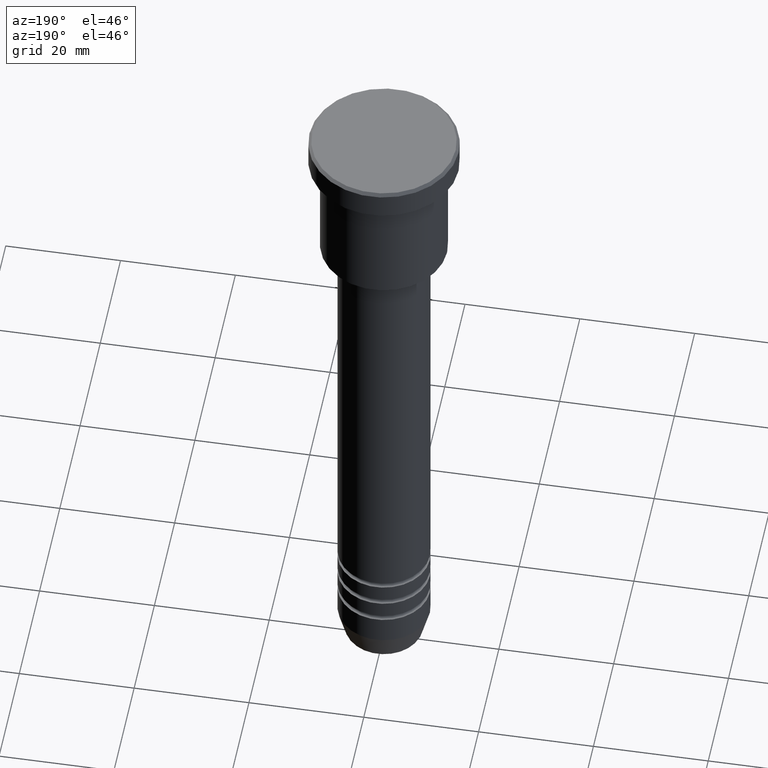
[diagram: clean part render]
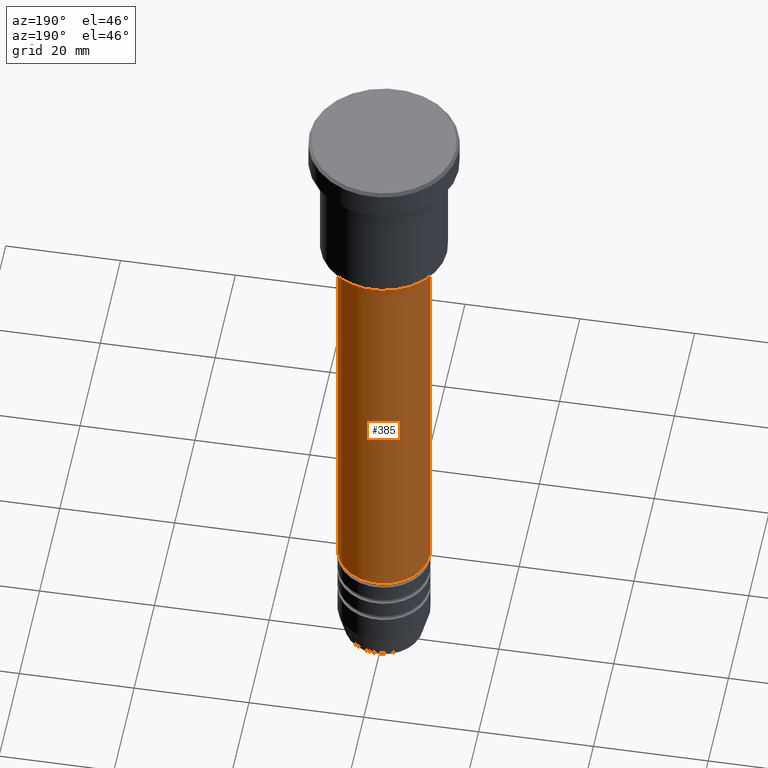
[diagram: same view with one face highlighted and labeled with its STEP entity id]
A machine part, auxiliary view. The second image highlights one B-rep face of the part: STEP entity #385.
In plain terms, the highlighted cylindrical surface (partial cylindrical patch) has radius 8 mm, axis along (-0, -0, 1).
Its self-contained STEP definition (entity closure, byte-faithful):
#17 = FACE_OUTER_BOUND ( 'NONE', #227, .T. ) ;
#37 = EDGE_CURVE ( 'NONE', #417, #650, #1076, .T. ) ;
#38 = DIRECTION ( 'NONE',  ( -0.000000000000000000, -0.000000000000000000, 1.000000000000000000 ) ) ;
#72 = DIRECTION ( 'NONE',  ( -0.000000000000000000, -0.000000000000000000, 1.000000000000000000 ) ) ;
#97 = CARTESIAN_POINT ( 'NONE',  ( -8.000000000000000000, 9.797174393178825657E-16, -27.00000000000001776 ) ) ;
#123 = EDGE_CURVE ( 'NONE', #650, #1023, #735, .T. ) ;
#205 = CYLINDRICAL_SURFACE ( 'NONE', #637, 8.000000000000000000 ) ;
#219 = CARTESIAN_POINT ( 'NONE',  ( -8.000000000000000000, 9.797174393178825657E-16, -100.9999999999999716 ) ) ;
#223 = ORIENTED_EDGE ( 'NONE', *, *, #37, .F. ) ;
#227 = EDGE_LOOP ( 'NONE', ( #577, #242, #254, #223 ) ) ;
#229 = EDGE_CURVE ( 'NONE', #1066, #1023, #1082, .T. ) ;
#236 = CIRCLE ( 'NONE', #732, 8.000000000000000000 ) ;
#242 = ORIENTED_EDGE ( 'NONE', *, *, #229, .T. ) ;
#254 = ORIENTED_EDGE ( 'NONE', *, *, #123, .F. ) ;
#269 = CARTESIAN_POINT ( 'NONE',  ( 0.000000000000000000, 0.000000000000000000, -100.9999999999999716 ) ) ;
#319 = CARTESIAN_POINT ( 'NONE',  ( 0.000000000000000000, 0.000000000000000000, -27.00000000000001776 ) ) ;
#385 = ADVANCED_FACE ( 'NONE', ( #17 ), #205, .T. ) ;
#417 = VERTEX_POINT ( 'NONE', #745 ) ;
#451 = DIRECTION ( 'NONE',  ( -0.000000000000000000, -0.000000000000000000, 1.000000000000000000 ) ) ;
#549 = CARTESIAN_POINT ( 'NONE',  ( 8.000000000000000000, 0.000000000000000000, -27.00000000000001776 ) ) ;
#551 = CARTESIAN_POINT ( 'NONE',  ( -8.000000000000000000, 9.797174393178825657E-16, 0.000000000000000000 ) ) ;
#577 = ORIENTED_EDGE ( 'NONE', *, *, #796, .T. ) ;
#581 = DIRECTION ( 'NONE',  ( 1.000000000000000000, 0.000000000000000000, 0.000000000000000000 ) ) ;
#623 = CARTESIAN_POINT ( 'NONE',  ( 8.000000000000000000, 0.000000000000000000, 0.000000000000000000 ) ) ;
#637 = AXIS2_PLACEMENT_3D ( 'NONE', #836, #1035, #581 ) ;
#641 = DIRECTION ( 'NONE',  ( -0.000000000000000000, -0.000000000000000000, 1.000000000000000000 ) ) ;
#650 = VERTEX_POINT ( 'NONE', #549 ) ;
#692 = DIRECTION ( 'NONE',  ( 1.000000000000000000, 0.000000000000000000, 0.000000000000000000 ) ) ;
#732 = AXIS2_PLACEMENT_3D ( 'NONE', #269, #641, #1004 ) ;
#735 = CIRCLE ( 'NONE', #1092, 8.000000000000000000 ) ;
#745 = CARTESIAN_POINT ( 'NONE',  ( 8.000000000000000000, 0.000000000000000000, -100.9999999999999716 ) ) ;
#796 = EDGE_CURVE ( 'NONE', #417, #1066, #236, .T. ) ;
#836 = CARTESIAN_POINT ( 'NONE',  ( 0.000000000000000000, 0.000000000000000000, 0.000000000000000000 ) ) ;
#906 = VECTOR ( 'NONE', #451, 1000.000000000000000 ) ;
#948 = VECTOR ( 'NONE', #72, 1000.000000000000000 ) ;
#1004 = DIRECTION ( 'NONE',  ( 1.000000000000000000, 0.000000000000000000, 0.000000000000000000 ) ) ;
#1023 = VERTEX_POINT ( 'NONE', #97 ) ;
#1035 = DIRECTION ( 'NONE',  ( -0.000000000000000000, -0.000000000000000000, 1.000000000000000000 ) ) ;
#1066 = VERTEX_POINT ( 'NONE', #219 ) ;
#1076 = LINE ( 'NONE', #623, #948 ) ;
#1082 = LINE ( 'NONE', #551, #906 ) ;
#1092 = AXIS2_PLACEMENT_3D ( 'NONE', #319, #38, #692 ) ;